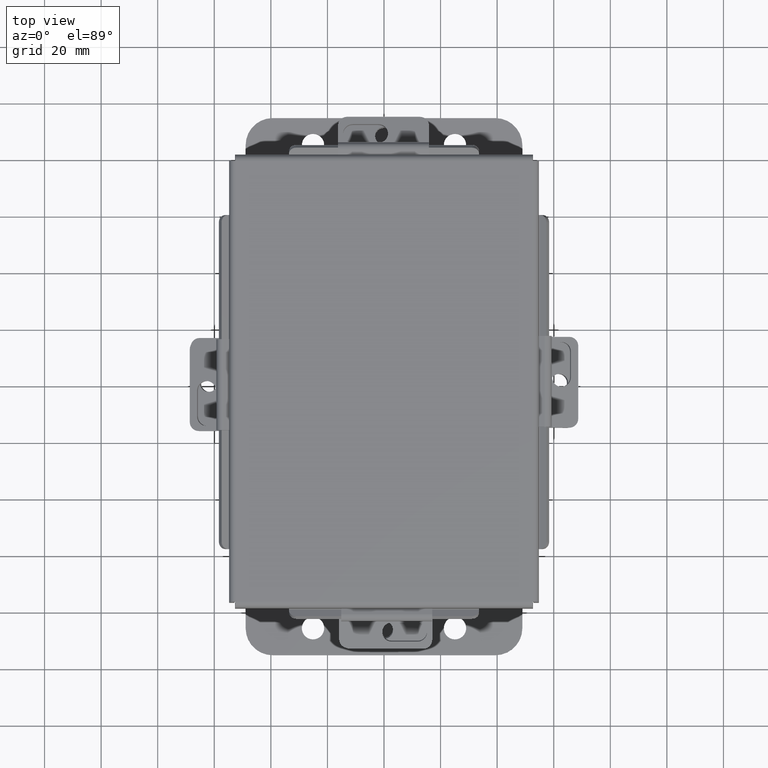
[diagram: clean part render]
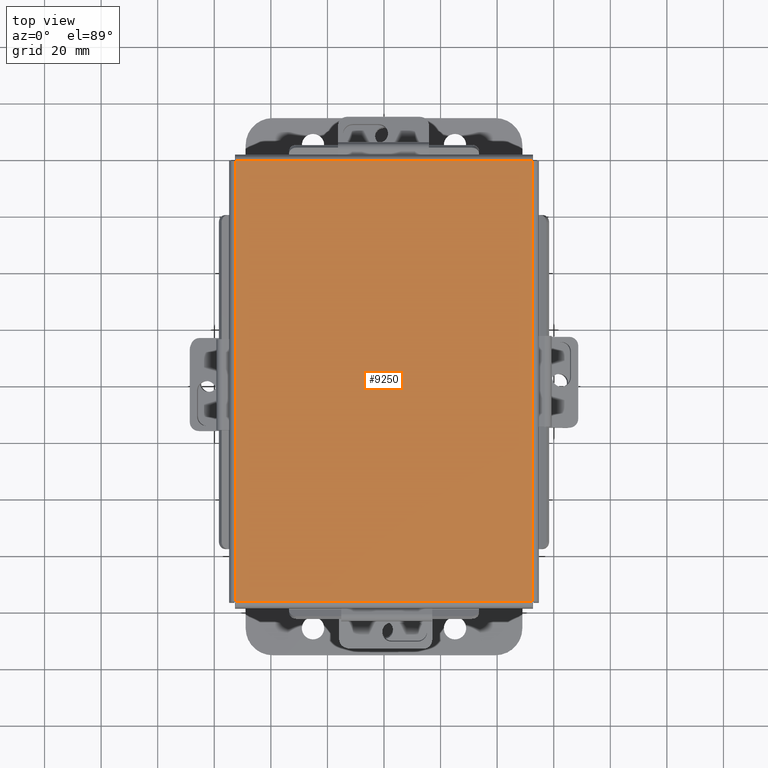
[diagram: same view with one face highlighted and labeled with its STEP entity id]
A machine part, top view. The second image highlights one B-rep face of the part: STEP entity #9250.
In plain terms, the highlighted planar face has unit normal (-0, -0, 1).
Its self-contained STEP definition (entity closure, byte-faithful):
#307 = LINE ( 'NONE', #7127, #7739 ) ;
#406 = DIRECTION ( 'NONE',  ( 1.000000000000000000, 0.0000000000000000000, 0.0000000000000000000 ) ) ;
#543 = DIRECTION ( 'NONE',  ( -0.0000000000000000000, 1.000000000000000000, -0.0000000000000000000 ) ) ;
#1081 = FACE_OUTER_BOUND ( 'NONE', #3902, .T. ) ;
#1115 = VECTOR ( 'NONE', #7859, 39.37007874015748100 ) ;
#1125 = EDGE_CURVE ( 'NONE', #5622, #1572, #2807, .T. ) ;
#1200 = EDGE_CURVE ( 'NONE', #6451, #5622, #4078, .T. ) ;
#1572 = VERTEX_POINT ( 'NONE', #9440 ) ;
#1743 = AXIS2_PLACEMENT_3D ( 'NONE', #9196, #3281, #8492 ) ;
#1901 = CARTESIAN_POINT ( 'NONE',  ( -2.074478932188136100, 3.068549999999999700, -0.07469999999999994700 ) ) ;
#2301 = ORIENTED_EDGE ( 'NONE', *, *, #1125, .T. ) ;
#2336 = VECTOR ( 'NONE', #543, 39.37007874015748100 ) ;
#2660 = DIRECTION ( 'NONE',  ( -0.0000000000000000000, -1.000000000000000000, -0.0000000000000000000 ) ) ;
#2807 = LINE ( 'NONE', #1901, #5021 ) ;
#2936 = CARTESIAN_POINT ( 'NONE',  ( -2.068550000000001000, -3.068550000000000100, -0.07470000000000022500 ) ) ;
#3258 = PLANE ( 'NONE',  #1743 ) ;
#3281 = DIRECTION ( 'NONE',  ( 0.0000000000000000000, 0.0000000000000000000, -1.000000000000000000 ) ) ;
#3415 = ORIENTED_EDGE ( 'NONE', *, *, #6915, .T. ) ;
#3902 = EDGE_LOOP ( 'NONE', ( #2301, #3415, #9413, #7090 ) ) ;
#4078 = LINE ( 'NONE', #4981, #2336 ) ;
#4554 = EDGE_CURVE ( 'NONE', #6255, #6451, #7045, .T. ) ;
#4981 = CARTESIAN_POINT ( 'NONE',  ( -2.068550000000001000, -3.074478932188135200, -0.07470000000000022500 ) ) ;
#5021 = VECTOR ( 'NONE', #406, 39.37007874015748100 ) ;
#5604 = CARTESIAN_POINT ( 'NONE',  ( 2.068549999999999700, -3.068549999999999700, -0.07469999999999994700 ) ) ;
#5622 = VERTEX_POINT ( 'NONE', #8621 ) ;
#6255 = VERTEX_POINT ( 'NONE', #5604 ) ;
#6451 = VERTEX_POINT ( 'NONE', #2936 ) ;
#6915 = EDGE_CURVE ( 'NONE', #1572, #6255, #307, .T. ) ;
#7045 = LINE ( 'NONE', #7829, #1115 ) ;
#7090 = ORIENTED_EDGE ( 'NONE', *, *, #1200, .T. ) ;
#7127 = CARTESIAN_POINT ( 'NONE',  ( 2.068549999999999700, 3.074478932188135200, -0.07470000000000036300 ) ) ;
#7739 = VECTOR ( 'NONE', #2660, 39.37007874015748100 ) ;
#7829 = CARTESIAN_POINT ( 'NONE',  ( 2.074478932188134700, -3.068549999999999700, -0.07469999999999994700 ) ) ;
#7859 = DIRECTION ( 'NONE',  ( -1.000000000000000000, 0.0000000000000000000, 0.0000000000000000000 ) ) ;
#8492 = DIRECTION ( 'NONE',  ( -1.000000000000000000, 0.0000000000000000000, -0.0000000000000000000 ) ) ;
#8621 = CARTESIAN_POINT ( 'NONE',  ( -2.068550000000001000, 3.068549999999999700, -0.07469999999999994700 ) ) ;
#9196 = CARTESIAN_POINT ( 'NONE',  ( 0.0000000000000000000, 0.0000000000000000000, -0.07470000000000000300 ) ) ;
#9250 = ADVANCED_FACE ( 'NONE', ( #1081 ), #3258, .T. ) ;
#9413 = ORIENTED_EDGE ( 'NONE', *, *, #4554, .T. ) ;
#9440 = CARTESIAN_POINT ( 'NONE',  ( 2.068549999999999700, 3.068550000000000100, -0.07470000000000036300 ) ) ;